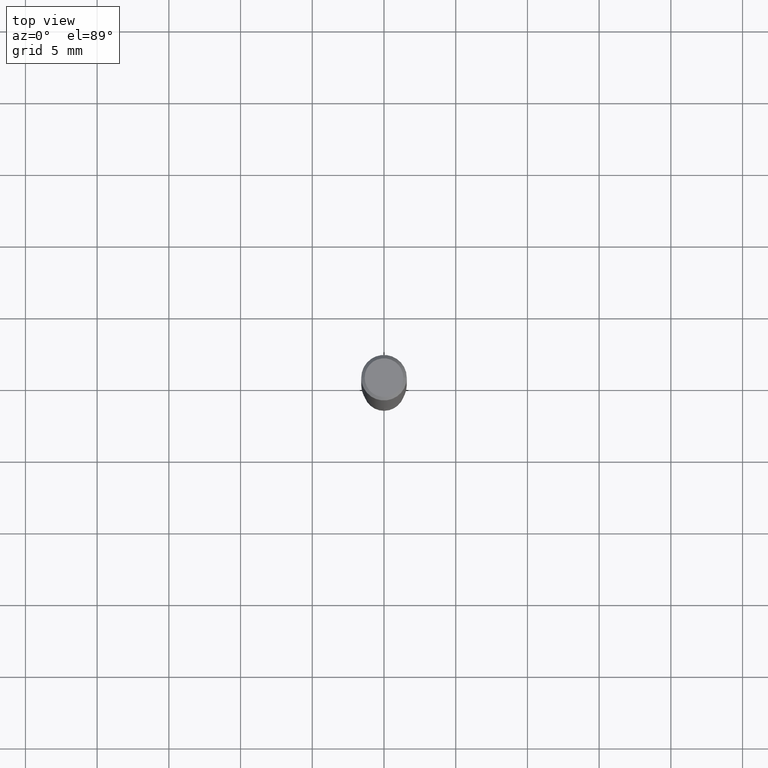
[diagram: clean part render]
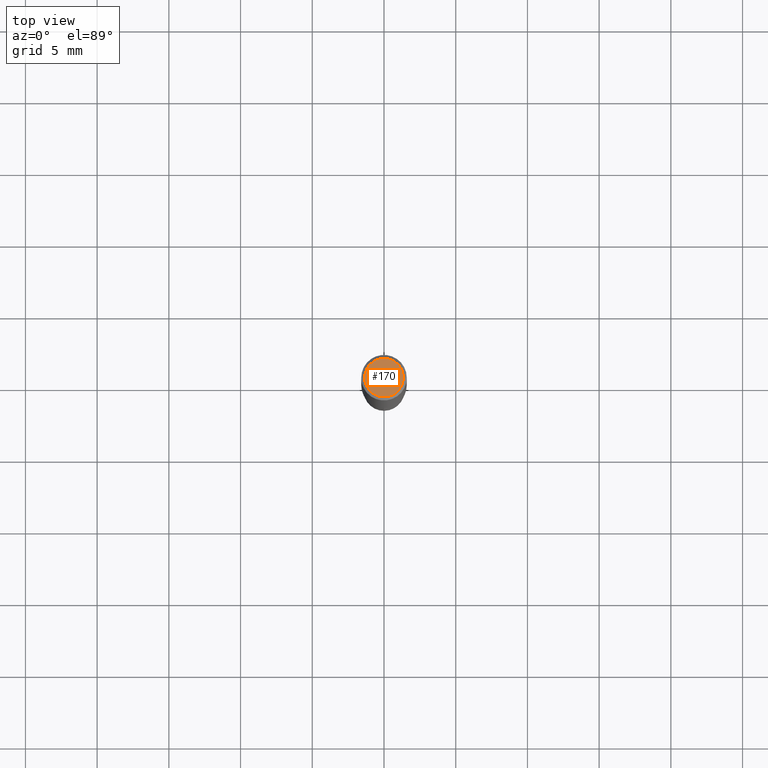
[diagram: same view with one face highlighted and labeled with its STEP entity id]
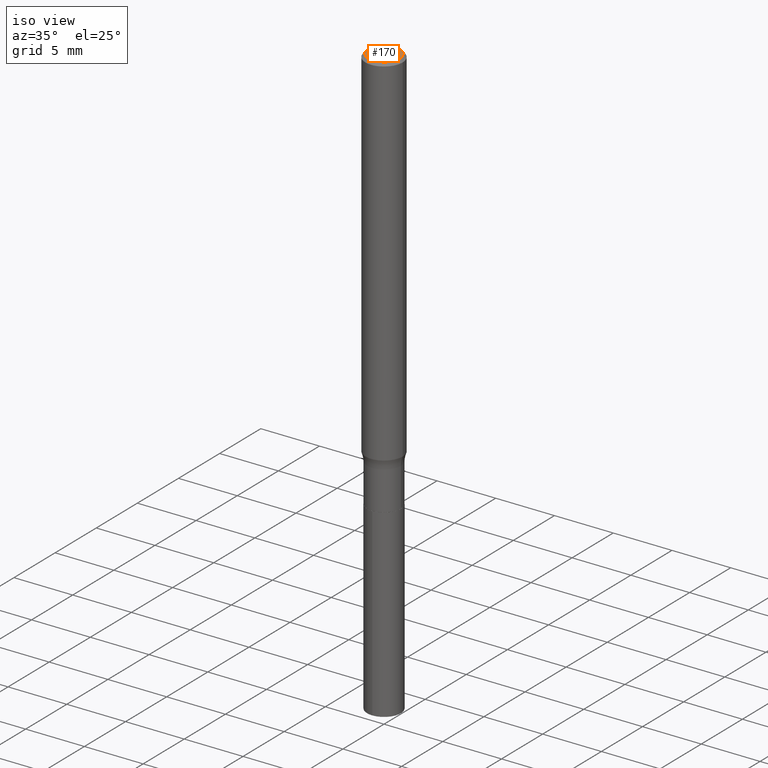
[diagram: same view with one face highlighted and labeled with its STEP entity id]
A machine part, top view. The second image highlights one B-rep face of the part: STEP entity #170.
A second angle (iso view) of the same face is appended — the face is thin or edge-on in the first view.
In plain terms, the highlighted planar face has unit normal (0, -0, -1).
Its self-contained STEP definition (entity closure, byte-faithful):
#14 = EDGE_LOOP ( 'NONE', ( #163, #308 ) ) ;
#69 = DIRECTION ( 'NONE',  ( 2.438088387897960049E-29, -3.491481338843145188E-15, -1.000000000000000000 ) ) ;
#86 = CARTESIAN_POINT ( 'NONE',  ( 9.546038302585977863E-46, -1.362921273379660165E-31, -3.903561672282188024E-17 ) ) ;
#116 = EDGE_CURVE ( 'NONE', #234, #168, #363, .T. ) ;
#148 = CARTESIAN_POINT ( 'NONE',  ( -0.05312499999999999861, 3.873362110279099094E-16, -3.903561672282453649E-17 ) ) ;
#150 = CARTESIAN_POINT ( 'NONE',  ( 4.773019151292988932E-46, -6.814606366898300824E-32, -1.951780836141094012E-17 ) ) ;
#163 = ORIENTED_EDGE ( 'NONE', *, *, #449, .T. ) ;
#168 = VERTEX_POINT ( 'NONE', #148 ) ;
#170 = ADVANCED_FACE ( 'NONE', ( #268 ), #188, .F. ) ;
#188 = PLANE ( 'NONE',  #451 ) ;
#215 = AXIS2_PLACEMENT_3D ( 'NONE', #291, #328, #372 ) ;
#233 = CIRCLE ( 'NONE', #401, 0.05312499999999999861 ) ;
#234 = VERTEX_POINT ( 'NONE', #450 ) ;
#243 = DIRECTION ( 'NONE',  ( -2.445468806185136597E-29, 3.491481338843145583E-15, 1.000000000000000000 ) ) ;
#268 = FACE_OUTER_BOUND ( 'NONE', #14, .T. ) ;
#291 = CARTESIAN_POINT ( 'NONE',  ( 9.546038302585977863E-46, -1.362921273379660165E-31, -3.903561672282188024E-17 ) ) ;
#308 = ORIENTED_EDGE ( 'NONE', *, *, #116, .T. ) ;
#328 = DIRECTION ( 'NONE',  ( -2.445468806185136597E-29, 3.491481338843145583E-15, 1.000000000000000000 ) ) ;
#348 = DIRECTION ( 'NONE',  ( 1.000000000000000000, -6.982962677686266711E-15, 4.881282378734115390E-29 ) ) ;
#363 = CIRCLE ( 'NONE', #215, 0.05312499999999999861 ) ;
#372 = DIRECTION ( 'NONE',  ( 1.000000000000000000, -6.982962677686266711E-15, 4.881282378734115390E-29 ) ) ;
#401 = AXIS2_PLACEMENT_3D ( 'NONE', #86, #243, #348 ) ;
#411 = DIRECTION ( 'NONE',  ( -1.000000000000000000, 6.982962677686265922E-15, -4.876176775795935793E-29 ) ) ;
#449 = EDGE_CURVE ( 'NONE', #168, #234, #233, .T. ) ;
#450 = CARTESIAN_POINT ( 'NONE',  ( 0.05312499999999999861, -4.129888592719940335E-16, -3.903561672281913772E-17 ) ) ;
#451 = AXIS2_PLACEMENT_3D ( 'NONE', #150, #69, #411 ) ;